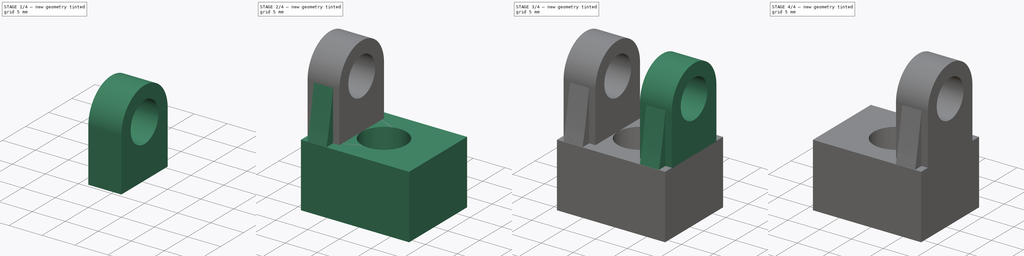
[diagram: build sequence overview — one tinted view per stage of 4, left to right]
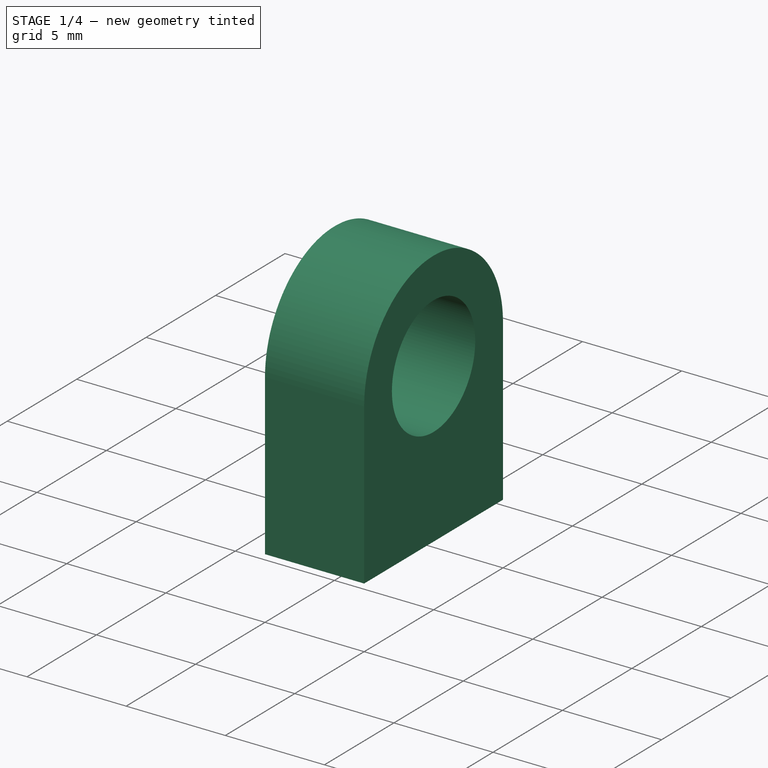
[diagram: stage 1 of 4 — iso view after this stage's code; geometry added in this stage tinted green]
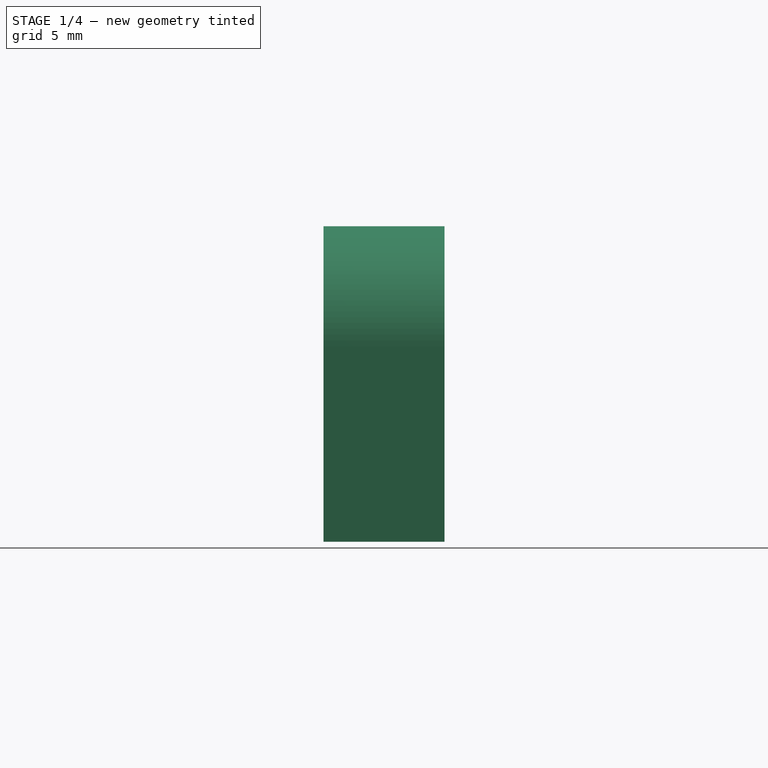
[diagram: stage 1 of 4 — front view after this stage's code; geometry added in this stage tinted green]
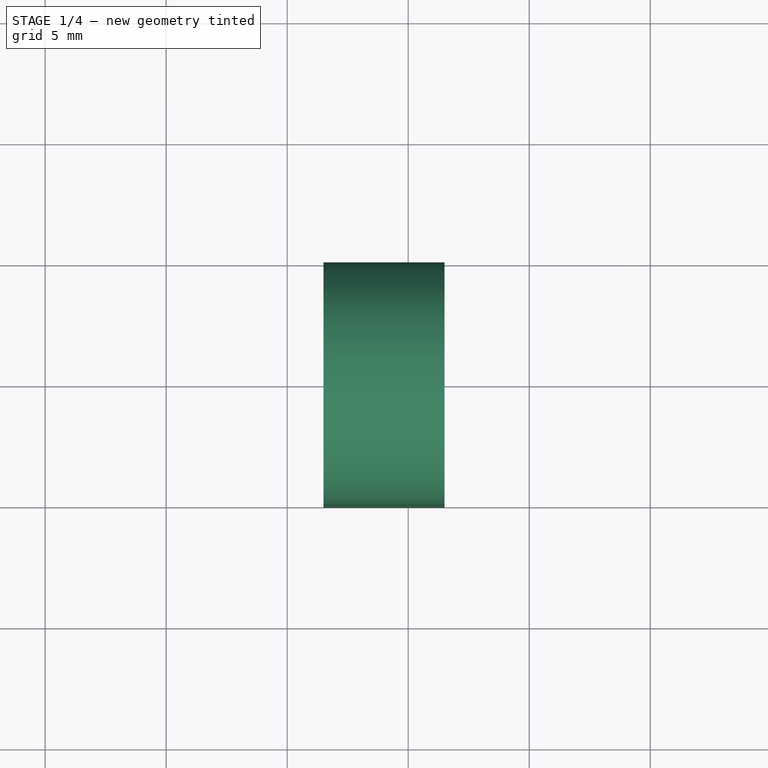
[diagram: stage 1 of 4 — top view after this stage's code; geometry added in this stage tinted green]
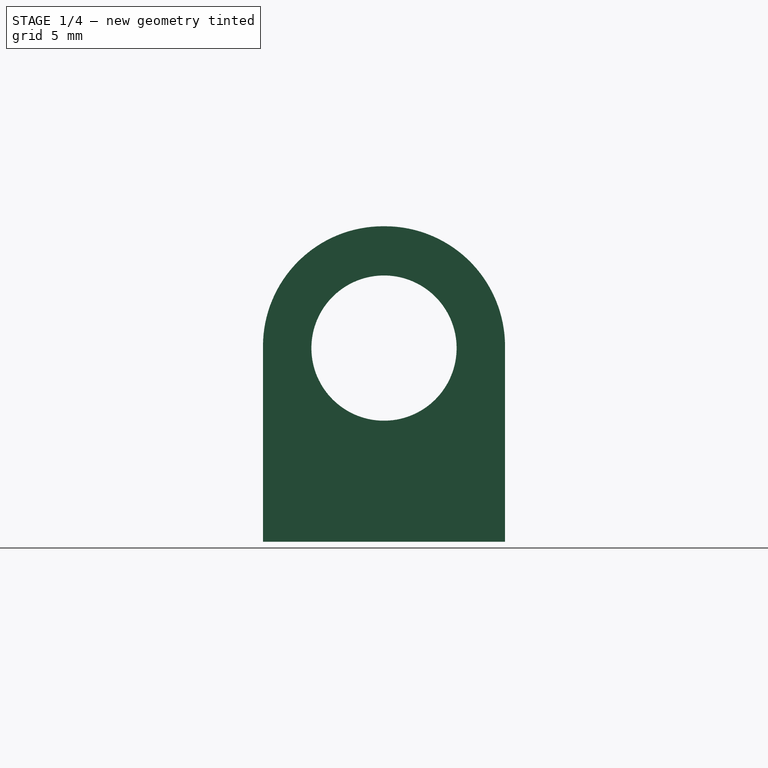
[diagram: stage 1 of 4 — right view after this stage's code; geometry added in this stage tinted green]
FCSTD DOCUMENT  (FreeCAD 0.19R24291 (Git))
Label: Accroche
License: All rights reserved
LicenseURL: http://en.wikipedia.org/wiki/All_rights_reserved
objects: Sketcher::SketchObject×5, PartDesign::Pad×3, Part::Extrusion×2, PartDesign::Mirrored×2, App::DocumentObjectGroup×2, PartDesign::FeatureBase×1, PartDesign::Body×1, Part::FeaturePython×1, Part::Cut×1
note: 19 computed .brp shape members not serialized (recipe doc carries the construction recipe); baked Part::Feature solids carry a one-line shape summary decoded from their .brp

FEATURE [App::DocumentObjectGroup] Group  label="Bras"
  Group = -> [Sketch002,Pad001,Mirrored,Extrude,Sketch003]
FEATURE [Sketcher::SketchObject] Sketch004  label="renfort001"
  AttachmentOffset = pos=(0,0,-4.5) rot=(0,0,1;0rad)
  FullyConstrained = false
  MapMode = 5
  Placement = pos=(-4.5,1e-15,-1e-15) rot=(0.57735,0.57735,0.57735;2.0944rad)
  Support = -> [YZ_Plane]
  sketch-geometry (11):
    g0: LineSegment StartX=4.98859 StartY=17.9219 StartZ=0 EndX=4.98859 EndY=9.85852 EndZ=0
    g1: LineSegment StartX=4.98859 StartY=9.85852 StartZ=0 EndX=6.5 EndY=9.83383 EndZ=0
    g2-g5: Circle x4 (B-spline internal-alignment scaffolding for g6; pole/knot coordinates omitted)
    g6: BSplineCurve PolesCount=4 KnotsCount=2 Degree=3 IsPeriodic=0
    g7: GeomPoint X=4.98859 Y=17.9219 Z=0
    g8: GeomPoint X=6.5 Y=9.83383 Z=0
    g9: LineSegment StartX=-1.2008e+08 StartY=1.55405 StartZ=0 EndX=-6.54133e+06 EndY=1.28692 EndZ=0
    g10: LineSegment StartX=6.5 StartY=-1e-16 StartZ=0 EndX=6.5 EndY=24.3629 EndZ=0
  constraints (14):
    c: Vertical(g0)
    c: Coincident(g0,g1)
    c: Coincident(g6,g0)
    c: Weight(g2) = 1
    c: Equal(g2,g3)
    c: Equal(g2,g4)
    c: Equal(g2,g5)
    c: Coincident(g6,g1)
    c: InternalAlignment(g2-g5 -> g6) x4
    c: InternalAlignment(g7,g6)
    c: InternalAlignment(g8,g6)
    c: Vertical(g10)
    c: Tangent(g10,g3)
    c: PointOnObject(g1,g10)
FEATURE [Sketcher::SketchObject] Sketch005  label="bras001"
  AttachmentOffset = pos=(0,9.9,-3.5) rot=(0,0,1;0rad)
  FullyConstrained = false
  MapMode = 5
  Placement = pos=(-3.5,3e-15,9.9) rot=(0.57735,0.57735,0.57735;2.0944rad)
  Support = -> [YZ_Plane]
  sketch-geometry (7):
    g0: LineSegment StartX=-5 StartY=0 StartZ=0 EndX=5 EndY=0 EndZ=0
    g1: LineSegment StartX=5 StartY=0 StartZ=0 EndX=5 EndY=8.07159 EndZ=0
    g2: LineSegment StartX=0.0387434 StartY=13.0328 StartZ=0 EndX=-0.0387434 EndY=13.0328 EndZ=0
    g3: LineSegment StartX=-5 StartY=8.07159 StartZ=0 EndX=-5 EndY=0 EndZ=0
    g4: Circle CenterX=0 CenterY=8 CenterZ=0 NormalX=0 NormalY=0 NormalZ=1 AngleXU=0 Radius=3
    g5: ArcOfCircle CenterX=-0.0387434 CenterY=8.07159 CenterZ=0 NormalX=0 NormalY=0 NormalZ=1 AngleXU=0 Radius=4.96126 StartAngle=1.5708 EndAngle=3.14159
    g6: ArcOfCircle CenterX=0.0387434 CenterY=8.07159 CenterZ=0 NormalX=0 NormalY=0 NormalZ=1 AngleXU=0 Radius=4.96126 StartAngle=0 EndAngle=1.5708
  constraints (16):
    c: Coincident(g0,g1)
    c: Coincident(g3,g0)
    c: Horizontal(g0)
    c: Horizontal(g2)
    c: Vertical(g1)
    c: Vertical(g3)
    c: Symmetric(g0,g0,g-1)
    c: DistanceX(g0,g0) = 10
    c: PointOnObject(g4,g-2)
    c: Radius(g4) = 3
    c: DistanceY(g0,g4) = 8
    c: Tangent(g2,g5) = -1.5708
    c: Tangent(g3,g5) = -1.5708
    c: Tangent(g2,g6) = -1.5708
    c: Tangent(g1,g6) = -1.5708
    c: Equal(g1,g3)
FEATURE [Part::Extrusion] Extrude001  label="bras_ext001"
  Base = -> Sketch005
  Dir = (1,-1e-16,1e-16)
  DirMode = 2
  FaceMakerClass = Part::FaceMakerBullseye
  LengthFwd = 5
  LengthRev = 0
  Reversed = true
  Solid = true
  Symmetric = false
FEATURE [PartDesign::FeatureBase] BaseFeature
  BaseFeature = -> Extrude001
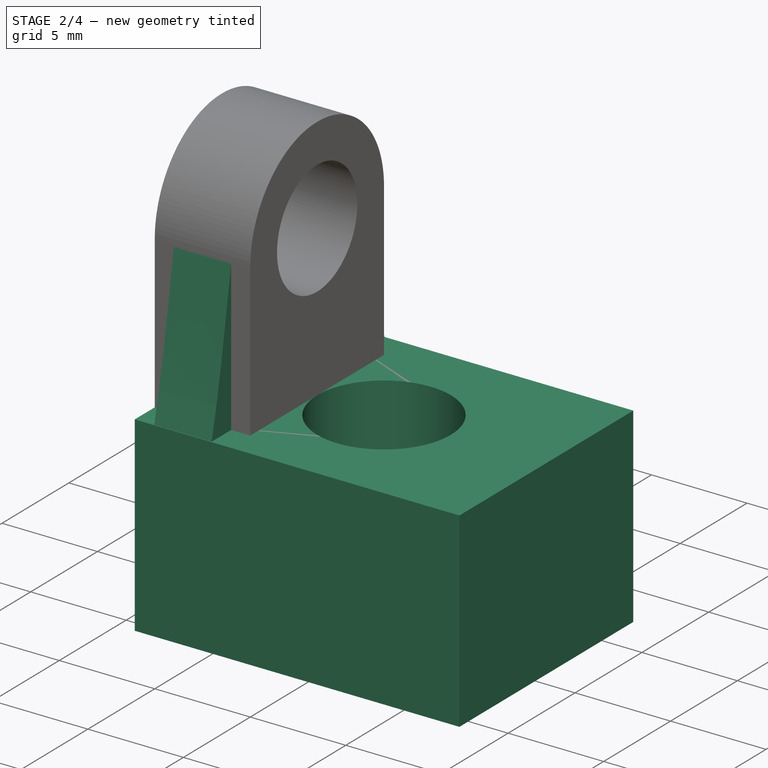
[diagram: stage 2 of 4 — iso view after this stage's code; geometry added in this stage tinted green]
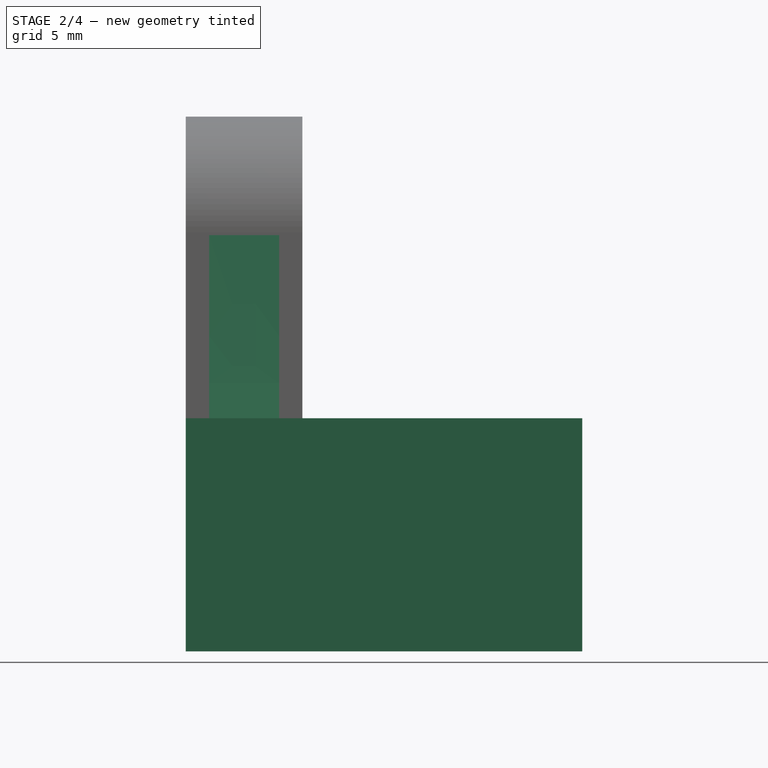
[diagram: stage 2 of 4 — front view after this stage's code; geometry added in this stage tinted green]
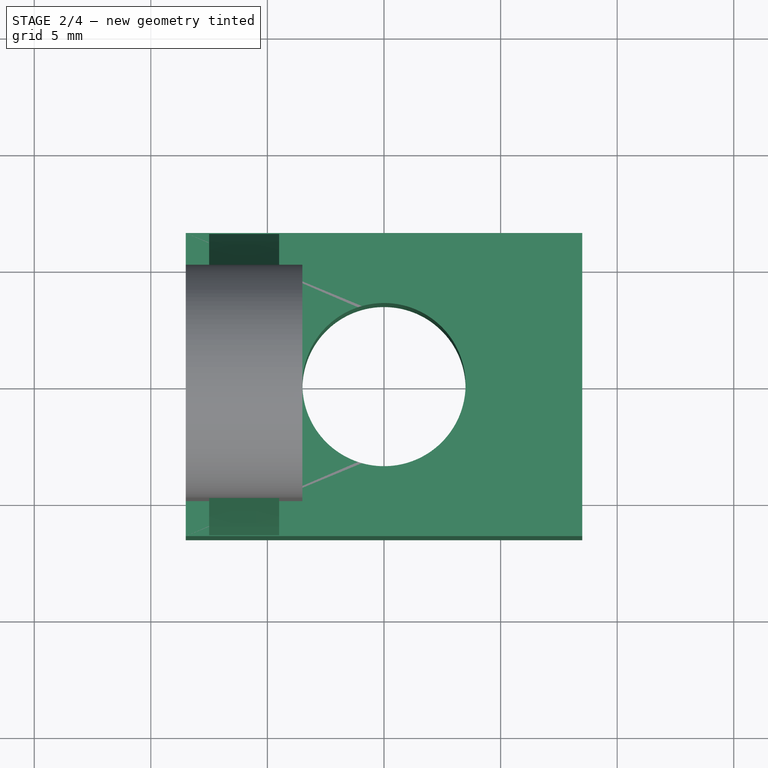
[diagram: stage 2 of 4 — top view after this stage's code; geometry added in this stage tinted green]
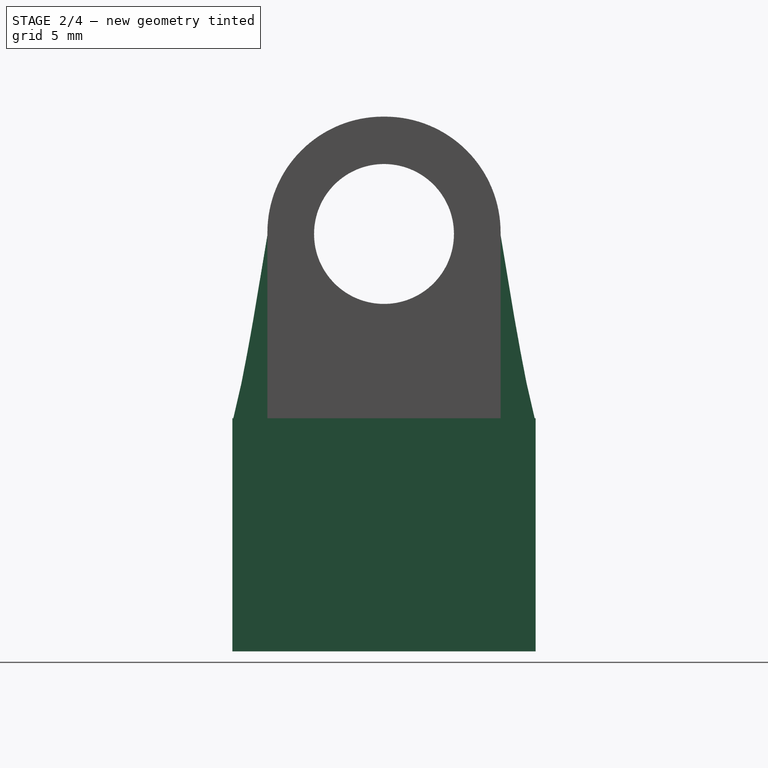
[diagram: stage 2 of 4 — right view after this stage's code; geometry added in this stage tinted green]
FEATURE [Sketcher::SketchObject] Sketch  label="support"
  FullyConstrained = false
  MapMode = 5
  Support = -> [XY_Plane]
  sketch-geometry (5):
    g0: Circle CenterX=0 CenterY=0 CenterZ=0 NormalX=0 NormalY=0 NormalZ=1 AngleXU=0 Radius=3.5
    g1: LineSegment StartX=-8.5 StartY=6.5 StartZ=0 EndX=8.5 EndY=6.5 EndZ=0
    g2: LineSegment StartX=8.5 StartY=6.5 StartZ=0 EndX=8.5 EndY=-6.5 EndZ=0
    g3: LineSegment StartX=8.5 StartY=-6.5 StartZ=0 EndX=-8.5 EndY=-6.5 EndZ=0
    g4: LineSegment StartX=-8.5 StartY=-6.5 StartZ=0 EndX=-8.5 EndY=6.5 EndZ=0
  constraints (11):
    c: Radius(g0) = 3.5
    c: Coincident(g1,g2)
    c: Coincident(g2,g3)
    c: Coincident(g3,g4)
    c: Coincident(g4,g1)
    c: Horizontal(g3)
    c: Vertical(g4)
    c: DistanceY(g2,g2) = 13
    c: Symmetric(g1,g2,g-1)
    c: Symmetric(g1,g1,g-2)
    c: DistanceX(g3,g3) = 17
FEATURE [PartDesign::Pad] Pad  label="support_pd"
  Direction = (1,1,1)
  Length = 10
  Length2 = 100
  Profile = -> Sketch
  Type = 0
FEATURE [PartDesign::Pad] Pad003  label="renfort_pad001"
  BaseFeature = -> BaseFeature
  Direction = (1,1,1)
  Length = 3
  Length2 = 100
  Profile = -> Sketch004
  Reversed = true
  Type = 0
FEATURE [PartDesign::Mirrored] Mirrored001
  BaseFeature = -> Pad003
  MirrorPlane = -> Sketch004 [V_Axis]
  Originals = -> [Pad003]
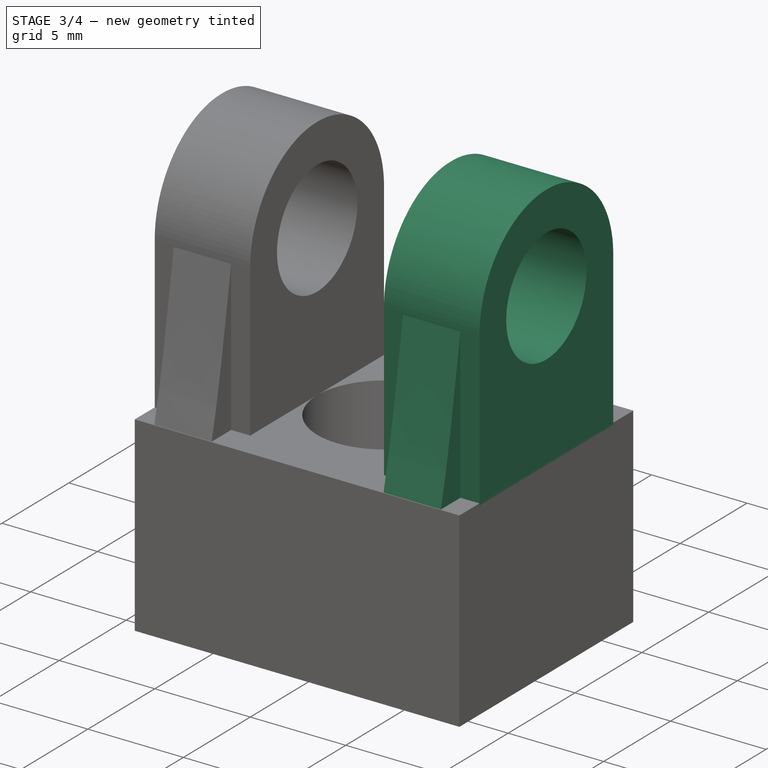
[diagram: stage 3 of 4 — iso view after this stage's code; geometry added in this stage tinted green]
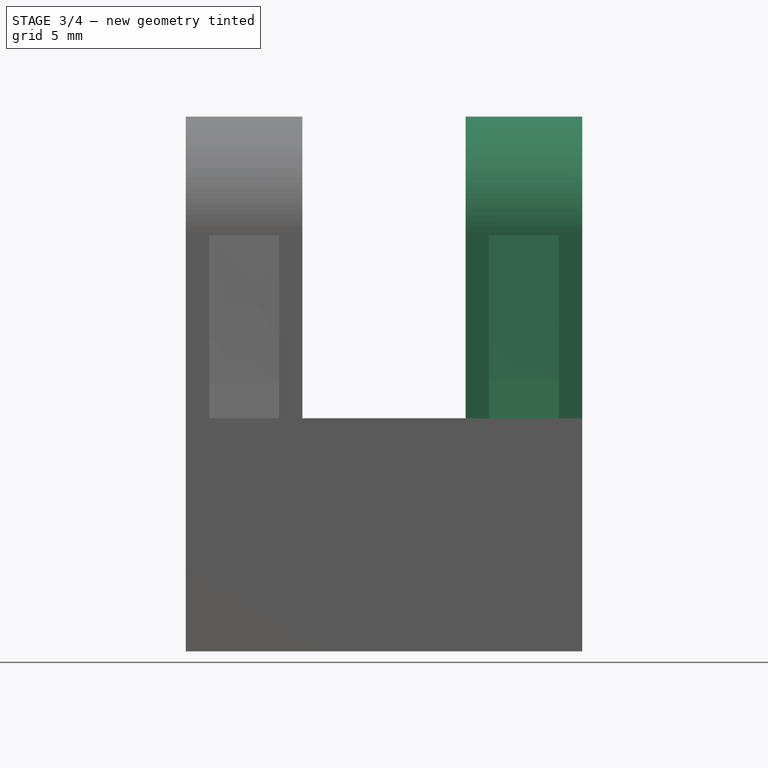
[diagram: stage 3 of 4 — front view after this stage's code; geometry added in this stage tinted green]
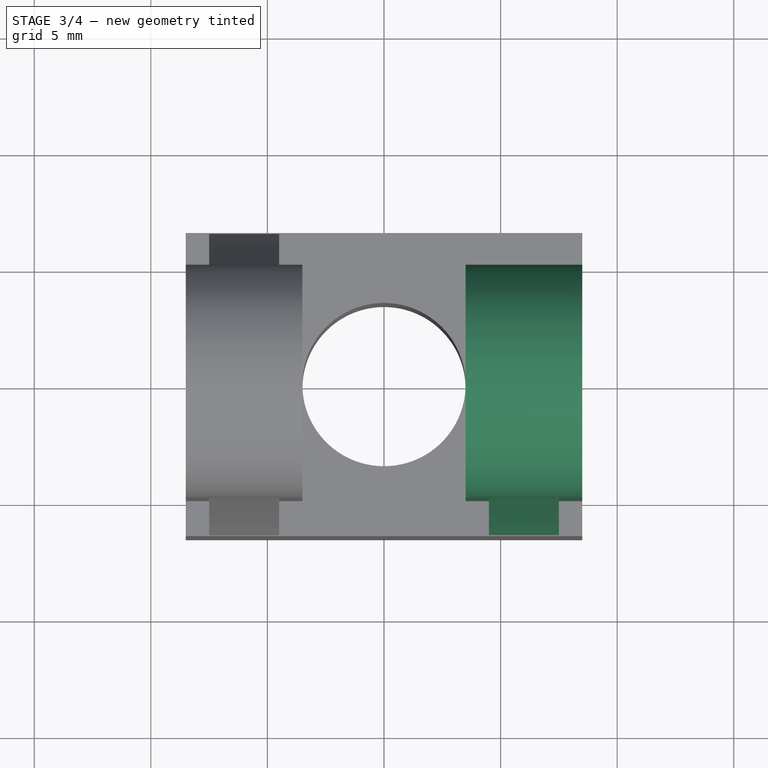
[diagram: stage 3 of 4 — top view after this stage's code; geometry added in this stage tinted green]
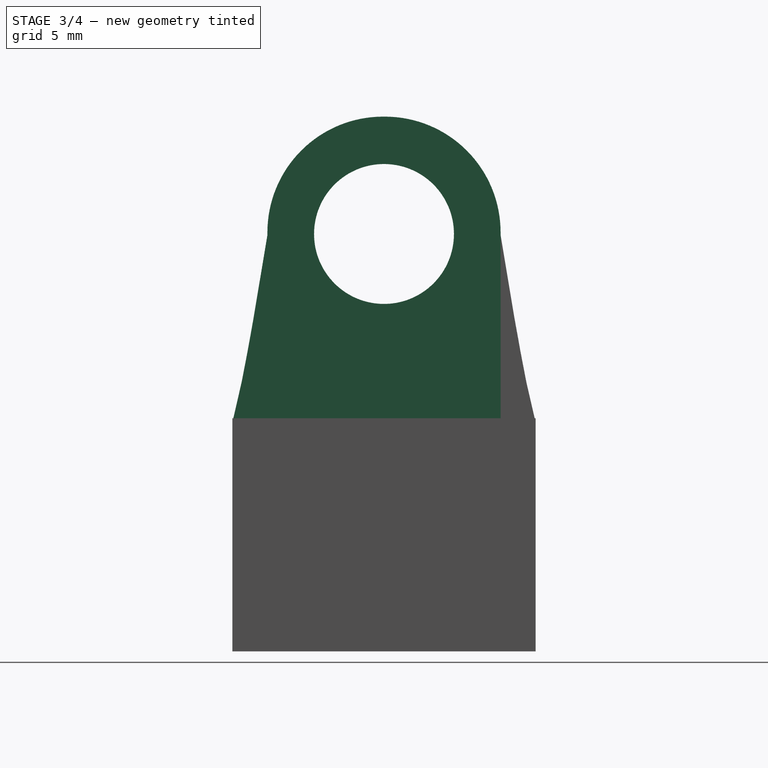
[diagram: stage 3 of 4 — right view after this stage's code; geometry added in this stage tinted green]
FEATURE [Sketcher::SketchObject] Sketch002  label="bras"
  AttachmentOffset = pos=(0,9.9,8.5) rot=(0,0,1;0rad)
  FullyConstrained = false
  MapMode = 5
  Placement = pos=(8.5,3e-16,9.9) rot=(0.57735,0.57735,0.57735;2.0944rad)
  Support = -> [YZ_Plane]
  sketch-geometry (7):
    g0: LineSegment StartX=-5 StartY=0 StartZ=0 EndX=5 EndY=0 EndZ=0
    g1: LineSegment StartX=5 StartY=0 StartZ=0 EndX=5 EndY=8.07159 EndZ=0
    g2: LineSegment StartX=0.0387434 StartY=13.0328 StartZ=0 EndX=-0.0387434 EndY=13.0328 EndZ=0
    g3: LineSegment StartX=-5 StartY=8.07159 StartZ=0 EndX=-5 EndY=0 EndZ=0
    g4: Circle CenterX=0 CenterY=8 CenterZ=0 NormalX=0 NormalY=0 NormalZ=1 AngleXU=0 Radius=3
    g5: ArcOfCircle CenterX=-0.0387434 CenterY=8.07159 CenterZ=0 NormalX=0 NormalY=0 NormalZ=1 AngleXU=0 Radius=4.96126 StartAngle=1.5708 EndAngle=3.14159
    g6: ArcOfCircle CenterX=0.0387434 CenterY=8.07159 CenterZ=0 NormalX=0 NormalY=0 NormalZ=1 AngleXU=0 Radius=4.96126 StartAngle=0 EndAngle=1.5708
  constraints (16):
    c: Coincident(g0,g1)
    c: Coincident(g3,g0)
    c: Horizontal(g0)
    c: Horizontal(g2)
    c: Vertical(g1)
    c: Vertical(g3)
    c: Symmetric(g0,g0,g-1)
    c: DistanceX(g0,g0) = 10
    c: PointOnObject(g4,g-2)
    c: Radius(g4) = 3
    c: DistanceY(g0,g4) = 8
    c: Tangent(g2,g5) = -1.5708
    c: Tangent(g3,g5) = -1.5708
    c: Tangent(g2,g6) = -1.5708
    c: Tangent(g1,g6) = -1.5708
    c: Equal(g1,g3)
FEATURE [Part::Extrusion] Extrude  label="bras_ext"
  Base = -> Sketch002
  Dir = (1,-1e-16,1e-16)
  DirMode = 2
  FaceMakerClass = Part::FaceMakerBullseye
  LengthFwd = 5
  LengthRev = 0
  Reversed = true
  Solid = true
  Symmetric = false
FEATURE [Sketcher::SketchObject] Sketch003  label="renfort"
  AttachmentOffset = pos=(0,0,7.5) rot=(0,0,1;0rad)
  ExternalGeometry = -> [Sketch]
  FullyConstrained = false
  MapMode = 5
  Placement = pos=(7.5,-1.7e-15,1.7e-15) rot=(0.57735,0.57735,0.57735;2.0944rad)
  Support = -> [YZ_Plane]
  sketch-geometry (11):
    g0: LineSegment StartX=4.98859 StartY=17.9219 StartZ=0 EndX=4.98859 EndY=9.85852 EndZ=0
    g1: LineSegment StartX=4.98859 StartY=9.85852 StartZ=0 EndX=6.5 EndY=9.83383 EndZ=0
    g2-g5: Circle x4 (B-spline internal-alignment scaffolding for g6; pole/knot coordinates omitted)
    g6: BSplineCurve PolesCount=4 KnotsCount=2 Degree=3 IsPeriodic=0
    g7: GeomPoint X=4.98859 Y=17.9219 Z=0
    g8: GeomPoint X=6.5 Y=9.83383 Z=0
    g9: LineSegment StartX=-1.2008e+08 StartY=1.55405 StartZ=0 EndX=-6.54133e+06 EndY=1.28692 EndZ=0
    g10: LineSegment StartX=6.5 StartY=-1e-16 StartZ=0 EndX=6.5 EndY=24.3629 EndZ=0
  constraints (15):
    c: Vertical(g0)
    c: Coincident(g0,g1)
    c: Coincident(g6,g0)
    c: Weight(g2) = 1
    c: Equal(g2,g3)
    c: Equal(g2,g4)
    c: Equal(g2,g5)
    c: Coincident(g6,g1)
    c: InternalAlignment(g2-g5 -> g6) x4
    c: InternalAlignment(g7,g6)
    c: InternalAlignment(g8,g6)
    c: Vertical(g10)
    c: Tangent(g10,g3)
    c: PointOnObject(g1,g10)
    c: Coincident(g10,g-4)
FEATURE [PartDesign::Pad] Pad001  label="renfort_pad"
  BaseFeature = -> Pad
  Direction = (1,1,1)
  Length = 3
  Length2 = 100
  Profile = -> Sketch003
  Reversed = true
  Type = 0
FEATURE [PartDesign::Mirrored] Mirrored
  BaseFeature = -> Pad
  MirrorPlane = -> Sketch003 [V_Axis]
  Originals = -> [Pad001]
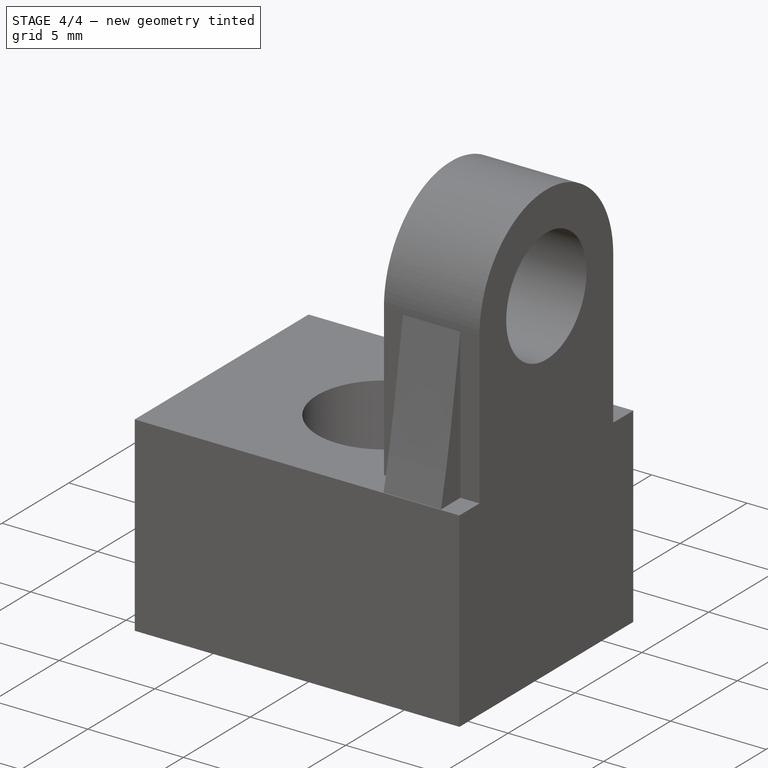
[diagram: stage 4 of 4 — iso view after this stage's code; geometry added in this stage tinted green]
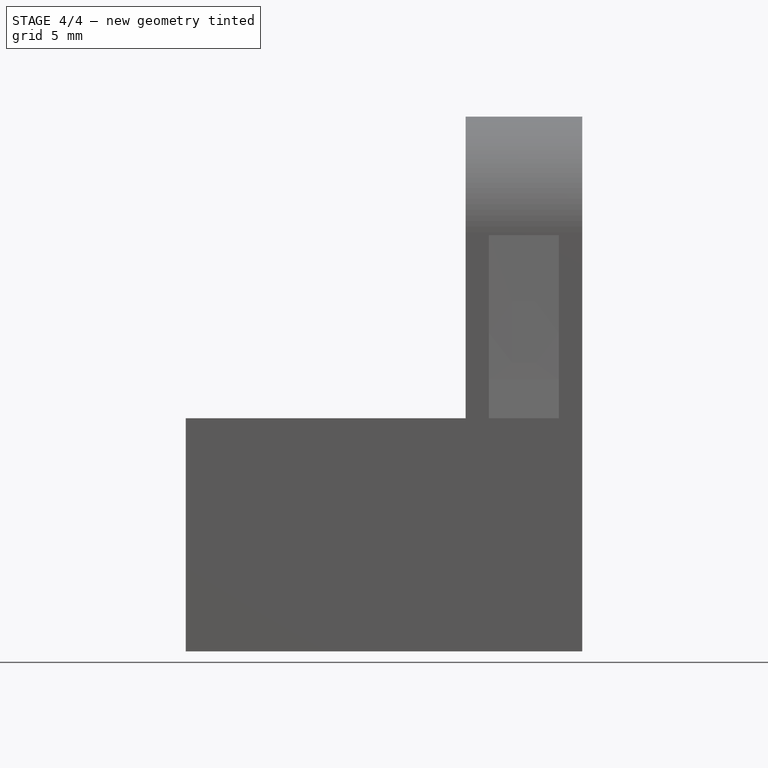
[diagram: stage 4 of 4 — front view after this stage's code; geometry added in this stage tinted green]
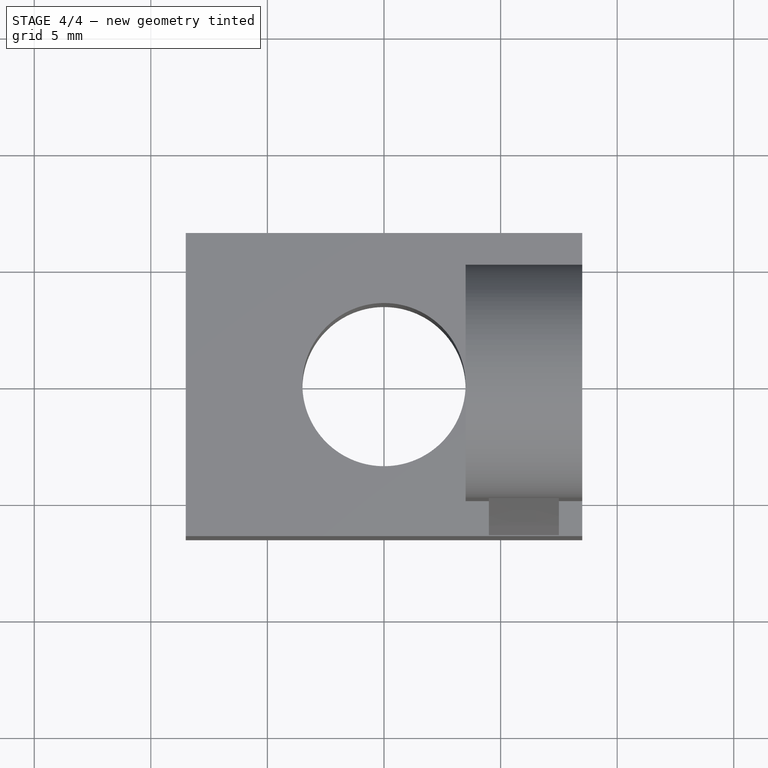
[diagram: stage 4 of 4 — top view after this stage's code; geometry added in this stage tinted green]
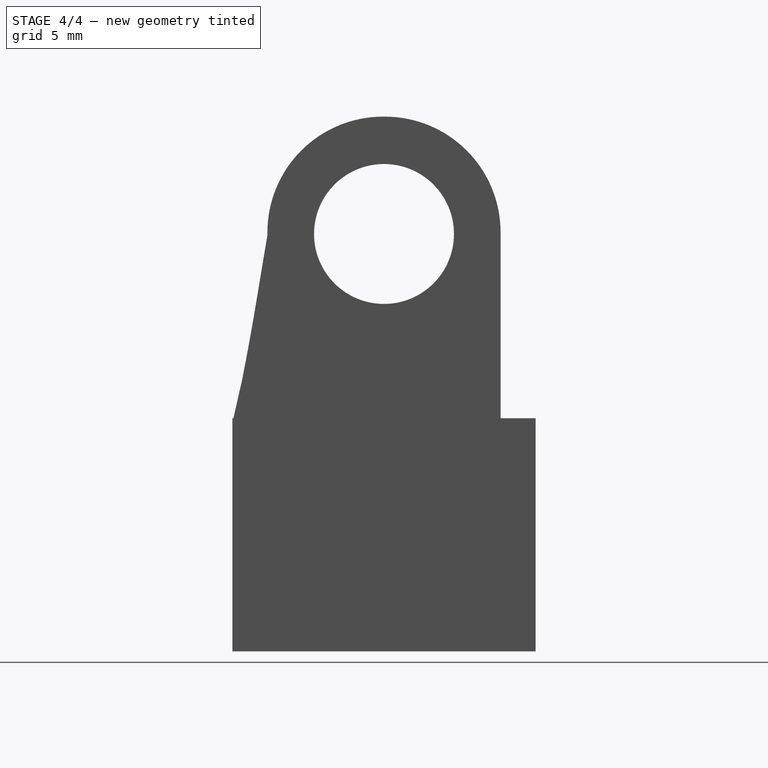
[diagram: stage 4 of 4 — right view after this stage's code; geometry added in this stage tinted green]
FEATURE [PartDesign::Body] Body
  BaseFeature = -> Extrude001
  Group = -> [BaseFeature,Sketch,Pad003,Sketch004,Sketch005,Mirrored001]
  Origin = -> Origin
  Tip = -> Mirrored001
FEATURE [Part::FeaturePython] ScrewTap  label="M8x20.0-ScrewTap"  # Fasteners workbench fastener (typed FeaturePython)
  Placement = pos=(0,0,10) rot=(0,0,1;0rad)
  baseObject = -> Body [Edge6]
  diameter = 9
  diameterCustom = 7
  invert = false
  length = 20
  matchOuter = false
  offset = 0
  pitchCustom = 1
  thread = true
FEATURE [Part::Cut] Cut
  Base = -> Pad
  Tool = -> ScrewTap
FEATURE [App::DocumentObjectGroup] Group001  label="support001"
  Group = -> [Pad,Cut]
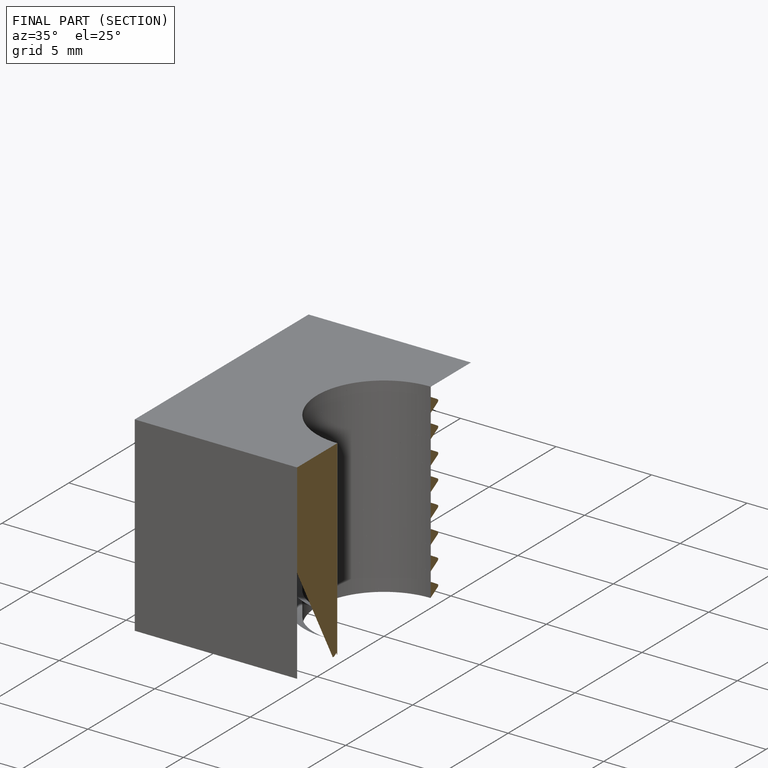
[diagram: finished part — half-section view (interior)]
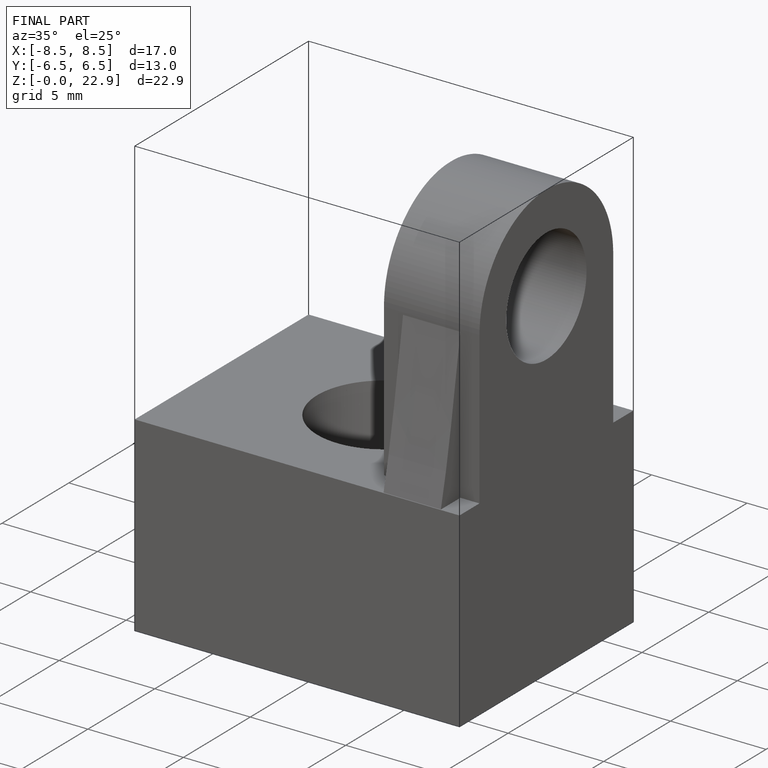
[diagram: finished part — iso view with bounding-box wireframe]
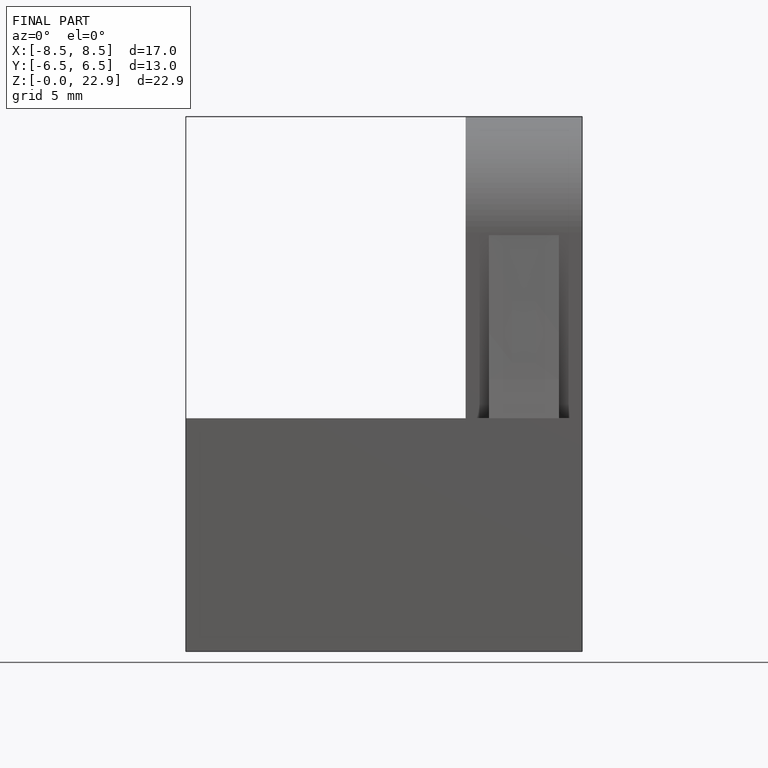
[diagram: finished part — front view with bounding-box wireframe]
